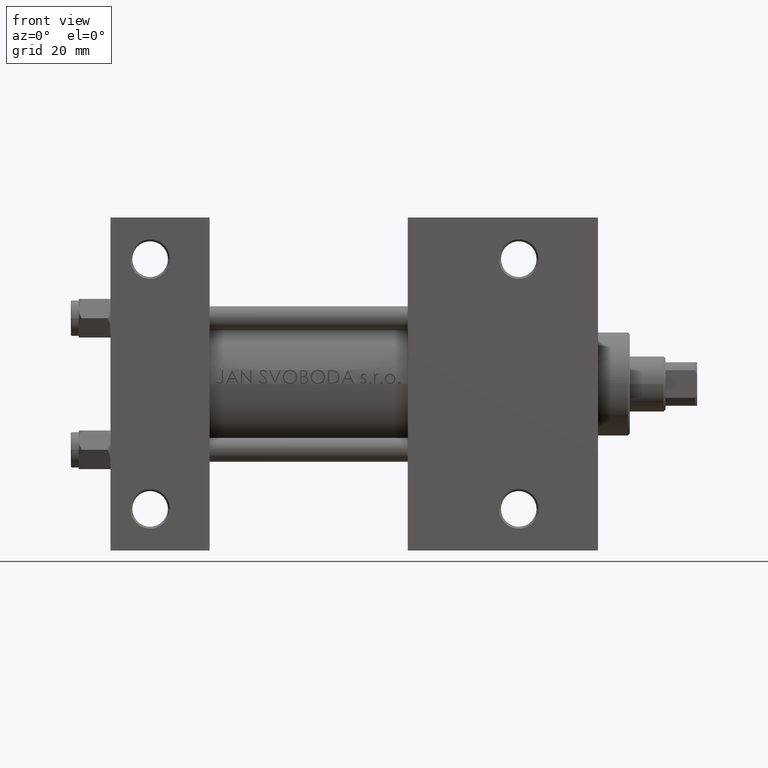
[diagram: clean part render]
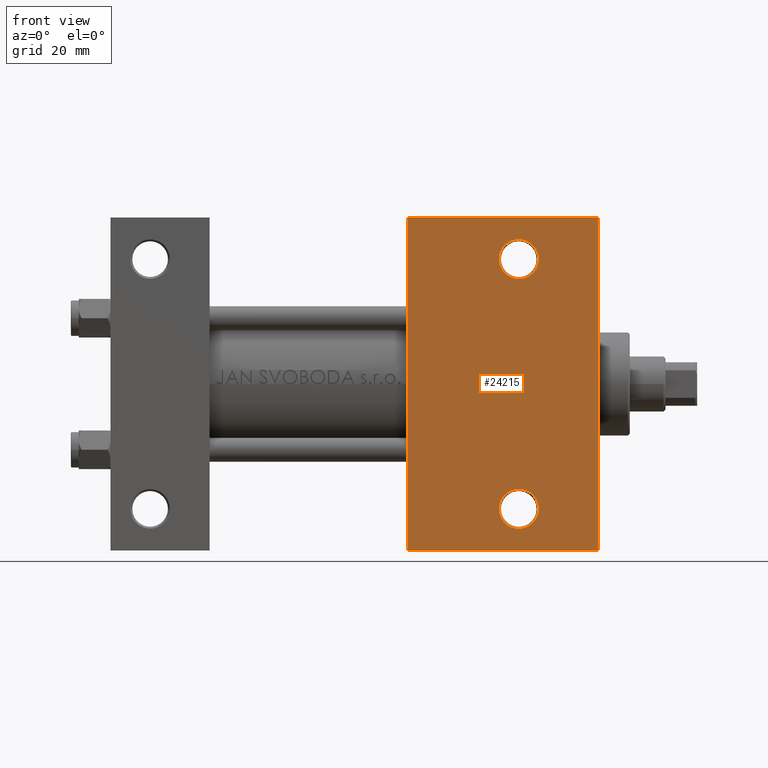
[diagram: same view with one face highlighted and labeled with its STEP entity id]
A machine part, front view. The second image highlights one B-rep face of the part: STEP entity #24215.
In plain terms, the highlighted planar face has unit normal (0, -1, -0).
Its self-contained STEP definition (entity closure, byte-faithful):
#163 = EDGE_CURVE ( 'NONE', #33383, #2759, #1897, .T. ) ;
#1622 = DIRECTION ( 'NONE',  ( -1.000000000000000000, -0.000000000000000000, -0.000000000000000000 ) ) ;
#1813 = VERTEX_POINT ( 'NONE', #7115 ) ;
#1897 = CIRCLE ( 'NONE', #31095, 4.999499999999962085 ) ;
#2706 = DIRECTION ( 'NONE',  ( 0.000000000000000000, 1.000000000000000000, 7.709882115452476934E-17 ) ) ;
#2759 = VERTEX_POINT ( 'NONE', #23741 ) ;
#2940 = VECTOR ( 'NONE', #10770, 1000.000000000000000 ) ;
#4301 = DIRECTION ( 'NONE',  ( 0.000000000000000000, 1.000000000000000000, 0.000000000000000000 ) ) ;
#5010 = ORIENTED_EDGE ( 'NONE', *, *, #38206, .T. ) ;
#5540 = CARTESIAN_POINT ( 'NONE',  ( 103.0000000000000142, -31.50000000000000000, -22.50000000000000000 ) ) ;
#6026 = DIRECTION ( 'NONE',  ( 0.000000000000000000, 1.000000000000000000, 0.000000000000000000 ) ) ;
#6707 = DIRECTION ( 'NONE',  ( -0.000000000000000000, -7.709882115452476934E-17, 1.000000000000000000 ) ) ;
#7031 = AXIS2_PLACEMENT_3D ( 'NONE', #5540, #12524, #16594 ) ;
#7115 = CARTESIAN_POINT ( 'NONE',  ( 75.00000000000000000, -42.00000000000000711, -22.50000000000000000 ) ) ;
#8152 = EDGE_LOOP ( 'NONE', ( #13376, #27447 ) ) ;
#9140 = VERTEX_POINT ( 'NONE', #45682 ) ;
#10685 = CARTESIAN_POINT ( 'NONE',  ( 98.00050000000005923, -31.50000000000000000, -22.50000000000000000 ) ) ;
#10770 = DIRECTION ( 'NONE',  ( 0.000000000000000000, -1.000000000000000000, -7.709882115452476934E-17 ) ) ;
#12524 = DIRECTION ( 'NONE',  ( -0.000000000000000000, -7.709882115452476934E-17, 1.000000000000000000 ) ) ;
#13039 = AXIS2_PLACEMENT_3D ( 'NONE', #39738, #31823, #2706 ) ;
#13376 = ORIENTED_EDGE ( 'NONE', *, *, #15562, .T. ) ;
#13404 = CIRCLE ( 'NONE', #19549, 4.999499999999962085 ) ;
#14884 = CARTESIAN_POINT ( 'NONE',  ( 75.00000000000001421, 22.50000000000000355, -22.49999999999999645 ) ) ;
#15562 = EDGE_CURVE ( 'NONE', #36632, #38376, #20722, .T. ) ;
#16594 = DIRECTION ( 'NONE',  ( 0.000000000000000000, 1.000000000000000000, 0.000000000000000000 ) ) ;
#16614 = CARTESIAN_POINT ( 'NONE',  ( 103.0000000000000142, 31.50000000000000000, -22.49999999999999645 ) ) ;
#17029 = DIRECTION ( 'NONE',  ( 1.000000000000000000, -2.891205793294679312E-16, 0.000000000000000000 ) ) ;
#17181 = VECTOR ( 'NONE', #17029, 1000.000000000000000 ) ;
#18392 = EDGE_CURVE ( 'NONE', #22732, #1813, #31447, .T. ) ;
#18882 = ORIENTED_EDGE ( 'NONE', *, *, #39636, .F. ) ;
#18926 = CARTESIAN_POINT ( 'NONE',  ( 107.9994999999999550, -31.50000000000000000, -22.50000000000000000 ) ) ;
#19432 = CARTESIAN_POINT ( 'NONE',  ( 75.00000000000000000, -42.00000000000000711, -22.50000000000000000 ) ) ;
#19549 = AXIS2_PLACEMENT_3D ( 'NONE', #23292, #26659, #4301 ) ;
#20517 = FACE_BOUND ( 'NONE', #8152, .T. ) ;
#20590 = VERTEX_POINT ( 'NONE', #30171 ) ;
#20722 = CIRCLE ( 'NONE', #43005, 4.999499999999948763 ) ;
#20995 = FACE_BOUND ( 'NONE', #44594, .T. ) ;
#21018 = EDGE_CURVE ( 'NONE', #20590, #22732, #32668, .T. ) ;
#22182 = ORIENTED_EDGE ( 'NONE', *, *, #21018, .T. ) ;
#22732 = VERTEX_POINT ( 'NONE', #27123 ) ;
#23292 = CARTESIAN_POINT ( 'NONE',  ( 103.0000000000000142, 31.50000000000000000, -22.49999999999999645 ) ) ;
#23741 = CARTESIAN_POINT ( 'NONE',  ( 107.9994999999999692, 31.50000000000000000, -22.49999999999999645 ) ) ;
#23912 = VECTOR ( 'NONE', #1622, 1000.000000000000000 ) ;
#24126 = VECTOR ( 'NONE', #33178, 1000.000000000000000 ) ;
#24215 = ADVANCED_FACE ( 'NONE', ( #20995, #20517, #24365 ), #27981, .T. ) ;
#24365 = FACE_OUTER_BOUND ( 'NONE', #37957, .T. ) ;
#26659 = DIRECTION ( 'NONE',  ( -0.000000000000000000, -7.709882115452476934E-17, 1.000000000000000000 ) ) ;
#27123 = CARTESIAN_POINT ( 'NONE',  ( 122.9999999999999858, -42.00000000000000711, -22.50000000000000000 ) ) ;
#27447 = ORIENTED_EDGE ( 'NONE', *, *, #32827, .T. ) ;
#27981 = PLANE ( 'NONE',  #13039 ) ;
#28605 = DIRECTION ( 'NONE',  ( 0.000000000000000000, 1.000000000000000000, 0.000000000000000000 ) ) ;
#30171 = CARTESIAN_POINT ( 'NONE',  ( 123.0000000000000000, 41.99999999999999289, -22.50000000000000000 ) ) ;
#31095 = AXIS2_PLACEMENT_3D ( 'NONE', #16614, #42357, #6026 ) ;
#31447 = LINE ( 'NONE', #19432, #23912 ) ;
#31468 = CARTESIAN_POINT ( 'NONE',  ( 75.00000000000001421, 42.00000000000000711, -22.50000000000000000 ) ) ;
#31823 = DIRECTION ( 'NONE',  ( 0.000000000000000000, 7.709882115452476934E-17, -1.000000000000000000 ) ) ;
#32668 = LINE ( 'NONE', #43712, #2940 ) ;
#32827 = EDGE_CURVE ( 'NONE', #38376, #36632, #36961, .T. ) ;
#33178 = DIRECTION ( 'NONE',  ( 0.000000000000000000, -1.000000000000000000, -7.709882115452476934E-17 ) ) ;
#33383 = VERTEX_POINT ( 'NONE', #35937 ) ;
#35937 = CARTESIAN_POINT ( 'NONE',  ( 98.00050000000004502, 31.50000000000000000, -22.49999999999999645 ) ) ;
#36632 = VERTEX_POINT ( 'NONE', #10685 ) ;
#36961 = CIRCLE ( 'NONE', #7031, 4.999499999999948763 ) ;
#37957 = EDGE_LOOP ( 'NONE', ( #18882, #5010, #22182, #41794 ) ) ;
#38206 = EDGE_CURVE ( 'NONE', #9140, #20590, #46140, .T. ) ;
#38376 = VERTEX_POINT ( 'NONE', #18926 ) ;
#39636 = EDGE_CURVE ( 'NONE', #9140, #1813, #45574, .T. ) ;
#39651 = CARTESIAN_POINT ( 'NONE',  ( 103.0000000000000142, -31.50000000000000000, -22.50000000000000000 ) ) ;
#39738 = CARTESIAN_POINT ( 'NONE',  ( 123.0000000000000142, 22.50000000000000355, -22.49999999999999645 ) ) ;
#41707 = EDGE_CURVE ( 'NONE', #2759, #33383, #13404, .T. ) ;
#41794 = ORIENTED_EDGE ( 'NONE', *, *, #18392, .T. ) ;
#42357 = DIRECTION ( 'NONE',  ( -0.000000000000000000, -7.709882115452476934E-17, 1.000000000000000000 ) ) ;
#43005 = AXIS2_PLACEMENT_3D ( 'NONE', #39651, #6707, #28605 ) ;
#43369 = ORIENTED_EDGE ( 'NONE', *, *, #41707, .T. ) ;
#43712 = CARTESIAN_POINT ( 'NONE',  ( 123.0000000000000142, 22.50000000000000355, -22.49999999999999645 ) ) ;
#44594 = EDGE_LOOP ( 'NONE', ( #44933, #43369 ) ) ;
#44933 = ORIENTED_EDGE ( 'NONE', *, *, #163, .T. ) ;
#45574 = LINE ( 'NONE', #14884, #24126 ) ;
#45682 = CARTESIAN_POINT ( 'NONE',  ( 75.00000000000001421, 42.00000000000000711, -22.50000000000000000 ) ) ;
#46140 = LINE ( 'NONE', #31468, #17181 ) ;